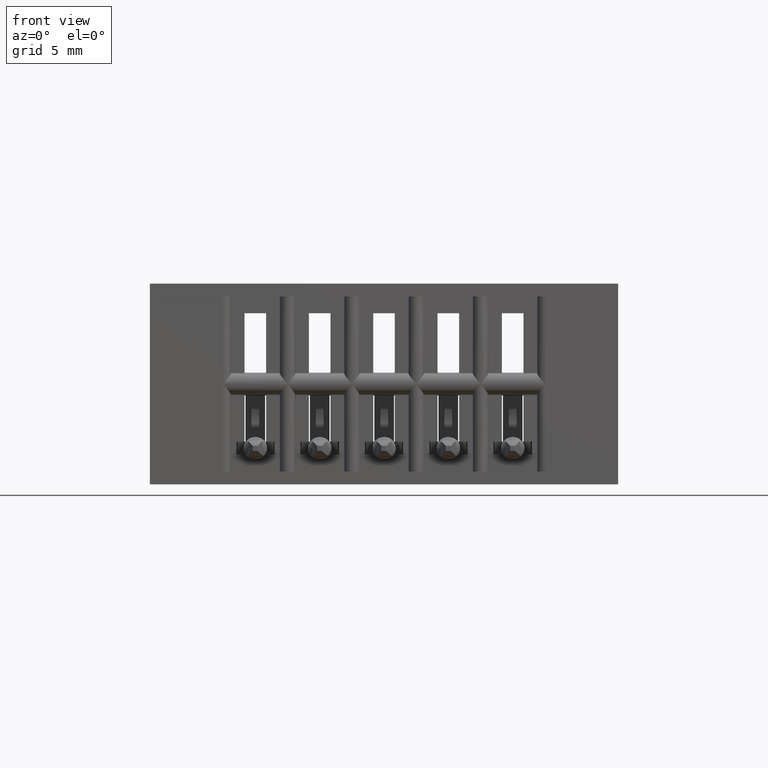
[diagram: clean part render]
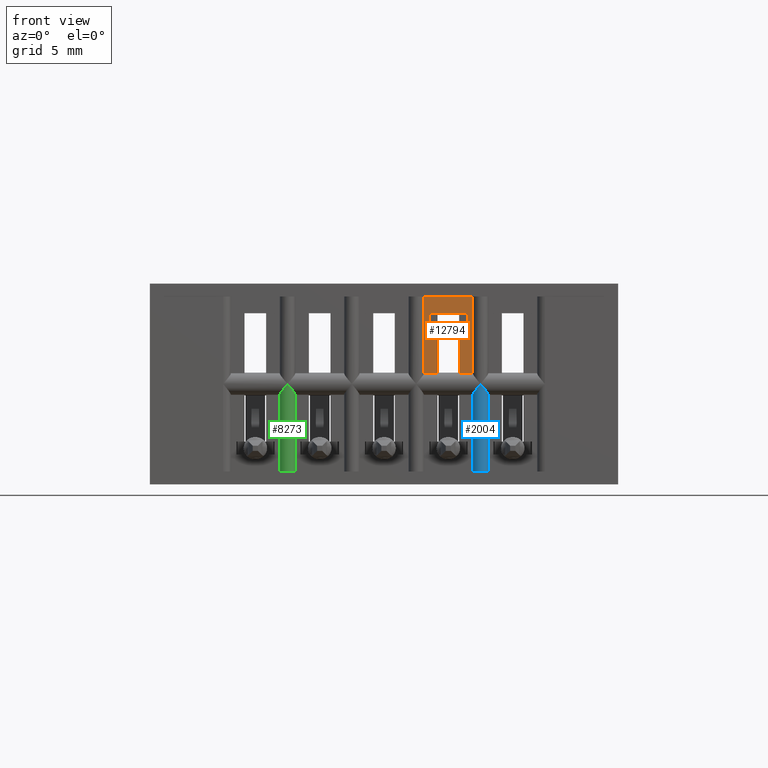
[diagram: same view with three faces highlighted in distinct colors, each labeled with its STEP entity id]
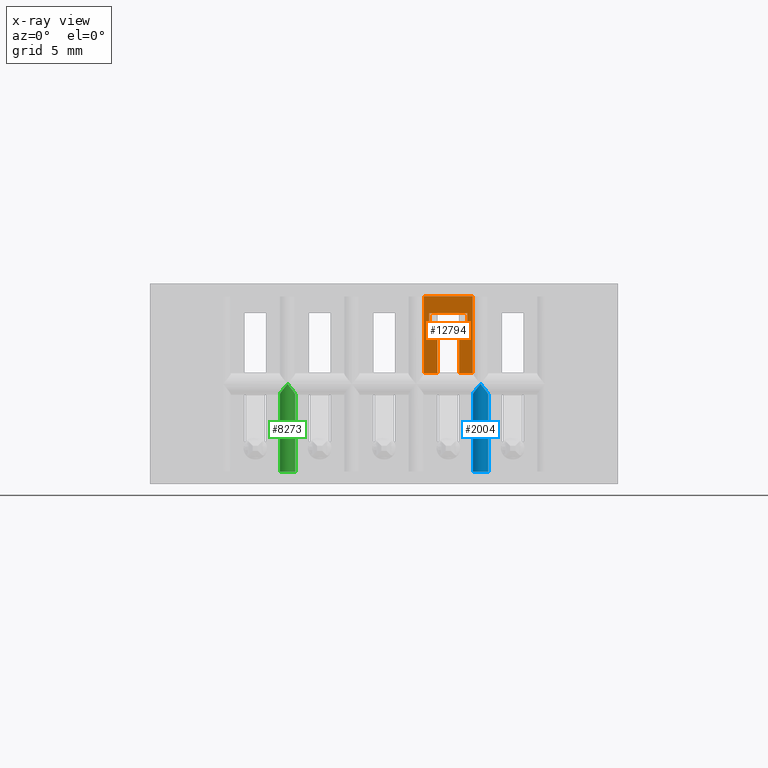
[diagram: x-ray of the same camera — body ghosted, the three highlighted faces saturated]
A machine part, front view with three faces highlighted in distinct colors.
The next image is the same camera in x-ray (body ghosted, the three faces saturated) — at least one of them is partly hidden behind the body in this view.
Their STEP definitions:

[orange] entity #12794 — the highlighted planar face has unit normal (0, 1, 0).
#206 = EDGE_CURVE ( 'NONE', #6165, #8175, #1963, .T. ) ;
#266 = DIRECTION ( 'NONE',  ( 0.0000000000000000000, -4.596859604723521792E-16, 1.000000000000000000 ) ) ;
#330 = LINE ( 'NONE', #3311, #10071 ) ;
#487 = CARTESIAN_POINT ( 'NONE',  ( 0.6274999999999996136, 0.01499999999999997516, -0.1741433463853853669 ) ) ;
#711 = ORIENTED_EDGE ( 'NONE', *, *, #7004, .F. ) ;
#755 = VERTEX_POINT ( 'NONE', #6535 ) ;
#775 = CARTESIAN_POINT ( 'NONE',  ( 0.5589999999994517133, 0.01499999999999997169, -0.1741433463853853669 ) ) ;
#1010 = ORIENTED_EDGE ( 'NONE', *, *, #11362, .T. ) ;
#1065 = CARTESIAN_POINT ( 'NONE',  ( -19685.03937007874265, 0.01499999999999987801, -0.1741433463808433058 ) ) ;
#1105 = EDGE_LOOP ( 'NONE', ( #12734, #9908, #5243, #711, #10422, #10274, #8058, #1733, #1010, #12609, #12163, #4181 ) ) ;
#1256 = DIRECTION ( 'NONE',  ( 9.044631870915464862E-16, 4.596859604723521792E-16, -1.000000000000000000 ) ) ;
#1406 = DIRECTION ( 'NONE',  ( 1.000000000000000000, -6.287160262869394461E-33, -2.170533279014657500E-16 ) ) ;
#1410 = VECTOR ( 'NONE', #9651, 39.37007874015748143 ) ;
#1527 = VECTOR ( 'NONE', #4737, 39.37007874015748143 ) ;
#1733 = ORIENTED_EDGE ( 'NONE', *, *, #11335, .T. ) ;
#1963 = LINE ( 'NONE', #12505, #1527 ) ;
#2042 = DIRECTION ( 'NONE',  ( -1.000000000000000000, -0.0000000000000000000, 2.307304048702924629E-16 ) ) ;
#2043 = CARTESIAN_POINT ( 'NONE',  ( 0.5324999999999997513, 0.01499999999999997169, -0.1741433463853853669 ) ) ;
#2130 = CARTESIAN_POINT ( 'NONE',  ( 0.5589999999999997193, 0.01499999999999997169, -4.404883600063556642E-17 ) ) ;
#2221 = FACE_OUTER_BOUND ( 'NONE', #1105, .T. ) ;
#2237 = CARTESIAN_POINT ( 'NONE',  ( 0.5429999999999995941, 0.01499999999999979475, -5.162495758701515027E-17 ) ) ;
#2269 = EDGE_CURVE ( 'NONE', #10881, #4845, #9682, .T. ) ;
#2429 = EDGE_CURVE ( 'NONE', #7485, #12585, #11156, .T. ) ;
#2447 = CARTESIAN_POINT ( 'NONE',  ( 0.5589999999999997193, 0.01499999999999983291, -0.08249999999999996225 ) ) ;
#2816 = EDGE_CURVE ( 'NONE', #5051, #4316, #10285, .T. ) ;
#3119 = VECTOR ( 'NONE', #8227, 39.37007874015748143 ) ;
#3214 = VECTOR ( 'NONE', #8849, 39.37007874015748143 ) ;
#3311 = CARTESIAN_POINT ( 'NONE',  ( 0.6274999999999996136, 0.01499999999999997169, -0.3900000000000000133 ) ) ;
#3354 = CARTESIAN_POINT ( 'NONE',  ( 0.5324999999999997513, 0.01499999999999997169, -0.02500000000000000486 ) ) ;
#3672 = VECTOR ( 'NONE', #2042, 39.37007874015748143 ) ;
#4181 = ORIENTED_EDGE ( 'NONE', *, *, #7243, .F. ) ;
#4285 = DIRECTION ( 'NONE',  ( -0.0000000000000000000, -0.0000000000000000000, 1.000000000000000000 ) ) ;
#4291 = LINE ( 'NONE', #6163, #3119 ) ;
#4316 = VERTEX_POINT ( 'NONE', #12149 ) ;
#4704 = VECTOR ( 'NONE', #11002, 39.37007874015748143 ) ;
#4737 = DIRECTION ( 'NONE',  ( -0.0000000000000000000, -0.0000000000000000000, 1.000000000000000000 ) ) ;
#4772 = CARTESIAN_POINT ( 'NONE',  ( 19685.03937007874265, 0.01499999999999987801, -0.1741433463899271783 ) ) ;
#4845 = VERTEX_POINT ( 'NONE', #487 ) ;
#5051 = VERTEX_POINT ( 'NONE', #6154 ) ;
#5203 = CARTESIAN_POINT ( 'NONE',  ( 0.6169999999999998819, 0.01499999999999979475, -1.163771384098141646E-16 ) ) ;
#5243 = ORIENTED_EDGE ( 'NONE', *, *, #2429, .T. ) ;
#5358 = AXIS2_PLACEMENT_3D ( 'NONE', #7306, #10993, #266 ) ;
#5398 = VECTOR ( 'NONE', #9212, 39.37007874015748143 ) ;
#5399 = CARTESIAN_POINT ( 'NONE',  ( 0.5589999999999997193, 0.01499999999999983291, -0.08249999999999993450 ) ) ;
#5857 = VERTEX_POINT ( 'NONE', #11472 ) ;
#6088 = EDGE_CURVE ( 'NONE', #5051, #755, #9985, .T. ) ;
#6154 = CARTESIAN_POINT ( 'NONE',  ( 0.5429999999999997051, 0.01499999999999982250, -0.05749999999999997474 ) ) ;
#6163 = CARTESIAN_POINT ( 'NONE',  ( 0.5589999999999997193, 0.01499999999999999424, -0.02500000000000003608 ) ) ;
#6165 = VERTEX_POINT ( 'NONE', #2043 ) ;
#6273 = CARTESIAN_POINT ( 'NONE',  ( 0.5589999999999997193, 0.01499999999999991444, -0.05750000000000015515 ) ) ;
#6291 = LINE ( 'NONE', #5203, #5398 ) ;
#6509 = LINE ( 'NONE', #2447, #12020 ) ;
#6535 = CARTESIAN_POINT ( 'NONE',  ( 0.5429999999999997051, 0.01499999999999982250, -0.08249999999999996225 ) ) ;
#7004 = EDGE_CURVE ( 'NONE', #755, #12585, #6509, .T. ) ;
#7223 = EDGE_CURVE ( 'NONE', #5857, #4316, #6291, .T. ) ;
#7243 = EDGE_CURVE ( 'NONE', #8175, #11069, #4291, .T. ) ;
#7306 = CARTESIAN_POINT ( 'NONE',  ( 0.5589999999999997193, 0.01499999999999979475, -3.715354659355037839E-17 ) ) ;
#7485 = VERTEX_POINT ( 'NONE', #775 ) ;
#7622 = CARTESIAN_POINT ( 'NONE',  ( 0.6009999999999996456, 0.01499999999999997169, -5.373951300518784932E-17 ) ) ;
#7641 = VECTOR ( 'NONE', #1256, 39.37007874015748143 ) ;
#7753 = CARTESIAN_POINT ( 'NONE',  ( 0.5589999999999997193, 0.01499999999999997169, -0.08249999999999997613 ) ) ;
#7868 = VECTOR ( 'NONE', #12094, 39.37007874015748143 ) ;
#7902 = CARTESIAN_POINT ( 'NONE',  ( 0.6274999999999996136, 0.01499999999999997169, -0.02500000000000000486 ) ) ;
#8058 = ORIENTED_EDGE ( 'NONE', *, *, #7223, .F. ) ;
#8122 = CARTESIAN_POINT ( 'NONE',  ( 0.6009999999999996456, 0.01499999999999997169, -0.1741433463853853669 ) ) ;
#8175 = VERTEX_POINT ( 'NONE', #3354 ) ;
#8227 = DIRECTION ( 'NONE',  ( 1.000000000000000000, -0.0000000000000000000, -2.307304048702925122E-16 ) ) ;
#8615 = LINE ( 'NONE', #7622, #1410 ) ;
#8849 = DIRECTION ( 'NONE',  ( 1.000000000000000000, 0.0000000000000000000, -2.307304048702924629E-16 ) ) ;
#9212 = DIRECTION ( 'NONE',  ( 1.365923996832131609E-15, -4.596859604723521792E-16, 1.000000000000000000 ) ) ;
#9651 = DIRECTION ( 'NONE',  ( -2.385081683068867604E-16, 0.0000000000000000000, -1.000000000000000000 ) ) ;
#9682 = LINE ( 'NONE', #4772, #3214 ) ;
#9908 = ORIENTED_EDGE ( 'NONE', *, *, #12158, .F. ) ;
#9985 = LINE ( 'NONE', #2237, #7641 ) ;
#10071 = VECTOR ( 'NONE', #4285, 39.37007874015748143 ) ;
#10274 = ORIENTED_EDGE ( 'NONE', *, *, #2816, .T. ) ;
#10285 = LINE ( 'NONE', #6273, #7868 ) ;
#10308 = LINE ( 'NONE', #5399, #4704 ) ;
#10382 = CARTESIAN_POINT ( 'NONE',  ( 0.6009999999999996456, 0.01499999999999982250, -0.08249999999999996225 ) ) ;
#10422 = ORIENTED_EDGE ( 'NONE', *, *, #6088, .F. ) ;
#10881 = VERTEX_POINT ( 'NONE', #8122 ) ;
#10961 = VECTOR ( 'NONE', #12080, 39.37007874015748143 ) ;
#10993 = DIRECTION ( 'NONE',  ( 1.060635277729750645E-31, 1.000000000000000000, 4.596859604723521792E-16 ) ) ;
#11002 = DIRECTION ( 'NONE',  ( -1.000000000000000000, -6.287160262869416356E-33, 2.444074818391192251E-16 ) ) ;
#11069 = VERTEX_POINT ( 'NONE', #7902 ) ;
#11156 = LINE ( 'NONE', #2130, #10961 ) ;
#11187 = PLANE ( 'NONE',  #5358 ) ;
#11335 = EDGE_CURVE ( 'NONE', #5857, #12008, #10308, .T. ) ;
#11362 = EDGE_CURVE ( 'NONE', #12008, #10881, #8615, .T. ) ;
#11472 = CARTESIAN_POINT ( 'NONE',  ( 0.6169999999999995488, 0.01499999999999982250, -0.08249999999999996225 ) ) ;
#11616 = EDGE_CURVE ( 'NONE', #4845, #11069, #330, .T. ) ;
#12008 = VERTEX_POINT ( 'NONE', #10382 ) ;
#12020 = VECTOR ( 'NONE', #1406, 39.37007874015748143 ) ;
#12080 = DIRECTION ( 'NONE',  ( 2.385081683068867604E-16, 0.0000000000000000000, 1.000000000000000000 ) ) ;
#12094 = DIRECTION ( 'NONE',  ( 1.000000000000000000, -0.0000000000000000000, -2.307304048702925122E-16 ) ) ;
#12149 = CARTESIAN_POINT ( 'NONE',  ( 0.6169999999999997708, 0.01499999999999982250, -0.05749999999999998168 ) ) ;
#12158 = EDGE_CURVE ( 'NONE', #7485, #6165, #12773, .T. ) ;
#12163 = ORIENTED_EDGE ( 'NONE', *, *, #11616, .T. ) ;
#12505 = CARTESIAN_POINT ( 'NONE',  ( 0.5324999999999997513, 0.01499999999999997169, -0.3900000000000000133 ) ) ;
#12585 = VERTEX_POINT ( 'NONE', #7753 ) ;
#12609 = ORIENTED_EDGE ( 'NONE', *, *, #2269, .T. ) ;
#12734 = ORIENTED_EDGE ( 'NONE', *, *, #206, .F. ) ;
#12773 = LINE ( 'NONE', #1065, #3672 ) ;
#12794 = ADVANCED_FACE ( 'NONE', ( #2221 ), #11187, .F. ) ;

[blue] entity #2004 — the highlighted cylindrical surface (edge-blend (fillet) strip) has radius 0.381 mm, axis along (0, 0, 1).
#274 = ORIENTED_EDGE ( 'NONE', *, *, #9875, .T. ) ;
#416 = CARTESIAN_POINT ( 'NONE',  ( 0.6574999999999997513, 0.01499999999999997169, -0.3900000000000000133 ) ) ;
#546 = CARTESIAN_POINT ( 'NONE',  ( 0.6274999999999996136, 0.01499999999999997169, -0.2158566536146137582 ) ) ;
#547 = CARTESIAN_POINT ( 'NONE',  ( 0.6281489313902629545, 0.01013343672870411702, -0.2136884110686218807 ) ) ;
#595 = DIRECTION ( 'NONE',  ( -0.0000000000000000000, -0.0000000000000000000, 1.000000000000000000 ) ) ;
#612 = EDGE_CURVE ( 'NONE', #6408, #4529, #4435, .T. ) ;
#776 = CARTESIAN_POINT ( 'NONE',  ( 0.6574999999999996403, 0.01244425316742273080, -0.2149988828447378930 ) ) ;
#1566 = VECTOR ( 'NONE', #10194, 39.37007874015748143 ) ;
#1599 = CARTESIAN_POINT ( 'NONE',  ( 0.6314099099108575475, 0.004728007783811010237, -0.2088061091034331407 ) ) ;
#1828 = CARTESIAN_POINT ( 'NONE',  ( 0.6458739981909384920, -1.610696509936327028E-17, -0.1990861248552219520 ) ) ;
#2004 = ADVANCED_FACE ( 'NONE', ( #12582 ), #3715, .T. ) ;
#2761 = CARTESIAN_POINT ( 'NONE',  ( 0.6424999999999996270, 0.01499999999999997169, -0.3900000000000000133 ) ) ;
#3715 = CYLINDRICAL_SURFACE ( 'NONE', #9413, 0.01499999999999997689 ) ;
#3765 = CARTESIAN_POINT ( 'NONE',  ( 0.6274999999999996136, 0.01499999999999997169, -0.3649999999999999911 ) ) ;
#3854 = CARTESIAN_POINT ( 'NONE',  ( 0.6574999999999997513, 0.01499999999999997169, -0.3649999999999999911 ) ) ;
#4018 = CARTESIAN_POINT ( 'NONE',  ( 0.6549025441399072278, 0.006292904779862440456, -0.2105999740989205060 ) ) ;
#4121 = B_SPLINE_CURVE_WITH_KNOTS ( 'NONE', 3,
 ( #9430, #12198, #547, #10447, #1599, #9235, #5545, #9485 ),
 .UNSPECIFIED., .F., .F.,
 ( 4, 2, 2, 4 ),
 ( 5.421010862427522170E-20, 0.0002018944217550984444, 0.0004037888435101967804, 0.0008075776870204009333 ),
 .UNSPECIFIED. ) ;
#4435 = CIRCLE ( 'NONE', #8980, 0.01499999999999997689 ) ;
#4510 = ORIENTED_EDGE ( 'NONE', *, *, #5913, .F. ) ;
#4529 = VERTEX_POINT ( 'NONE', #3854 ) ;
#4567 = VERTEX_POINT ( 'NONE', #9561 ) ;
#4801 = CARTESIAN_POINT ( 'NONE',  ( 0.6424999999999996270, -1.387266755345461223E-17, -0.1949999999999995348 ) ) ;
#5126 = DIRECTION ( 'NONE',  ( 0.0000000000000000000, 0.0000000000000000000, 1.000000000000000000 ) ) ;
#5225 = EDGE_LOOP ( 'NONE', ( #11473, #4510, #8862, #9631, #274 ) ) ;
#5545 = CARTESIAN_POINT ( 'NONE',  ( 0.6391260018090532125, -1.597357408404763810E-17, -0.1990861248552154850 ) ) ;
#5913 = EDGE_CURVE ( 'NONE', #10949, #4567, #4121, .T. ) ;
#5948 = CARTESIAN_POINT ( 'NONE',  ( 0.6274999999999996136, 0.01499999999999997169, -0.3900000000000000133 ) ) ;
#6249 = LINE ( 'NONE', #416, #1566 ) ;
#6335 = VERTEX_POINT ( 'NONE', #9654 ) ;
#6408 = VERTEX_POINT ( 'NONE', #3765 ) ;
#6701 = DIRECTION ( 'NONE',  ( -0.0000000000000000000, -0.0000000000000000000, 1.000000000000000000 ) ) ;
#7572 = B_SPLINE_CURVE_WITH_KNOTS ( 'NONE', 3,
 ( #8806, #776, #11907, #4018, #8873, #9293, #1828, #4801 ),
 .UNSPECIFIED., .F., .F.,
 ( 4, 2, 2, 4 ),
 ( 4.336808689942017736E-19, 0.0002018944217550996641, 0.0004037888435101988946, 0.0008075776870204011502 ),
 .UNSPECIFIED. ) ;
#8707 = EDGE_CURVE ( 'NONE', #6335, #4567, #7572, .T. ) ;
#8806 = CARTESIAN_POINT ( 'NONE',  ( 0.6574999999999997513, 0.01499999999999997169, -0.2158566536146137305 ) ) ;
#8862 = ORIENTED_EDGE ( 'NONE', *, *, #10408, .F. ) ;
#8873 = CARTESIAN_POINT ( 'NONE',  ( 0.6535900900891420395, 0.004728007783811011104, -0.2088061091034331407 ) ) ;
#8938 = DIRECTION ( 'NONE',  ( 1.000000000000000000, 0.0000000000000000000, 0.0000000000000000000 ) ) ;
#8980 = AXIS2_PLACEMENT_3D ( 'NONE', #10028, #5126, #8938 ) ;
#9235 = CARTESIAN_POINT ( 'NONE',  ( 0.6357066941780518121, 0.001112354947348557751, -0.2032114395158498565 ) ) ;
#9293 = CARTESIAN_POINT ( 'NONE',  ( 0.6492933058219477749, 0.001112354947348558835, -0.2032114395158498010 ) ) ;
#9413 = AXIS2_PLACEMENT_3D ( 'NONE', #2761, #6701, #10637 ) ;
#9430 = CARTESIAN_POINT ( 'NONE',  ( 0.6274999999999996136, 0.01499999999999997169, -0.2158566536146137582 ) ) ;
#9485 = CARTESIAN_POINT ( 'NONE',  ( 0.6424999999999996270, -1.387266755345461223E-17, -0.1949999999999995348 ) ) ;
#9561 = CARTESIAN_POINT ( 'NONE',  ( 0.6424999999999996270, -1.387266755345461223E-17, -0.1949999999999995348 ) ) ;
#9631 = ORIENTED_EDGE ( 'NONE', *, *, #612, .T. ) ;
#9654 = CARTESIAN_POINT ( 'NONE',  ( 0.6574999999999997513, 0.01499999999999997169, -0.2158566536146137305 ) ) ;
#9875 = EDGE_CURVE ( 'NONE', #4529, #6335, #6249, .T. ) ;
#9890 = VECTOR ( 'NONE', #595, 39.37007874015748143 ) ;
#10028 = CARTESIAN_POINT ( 'NONE',  ( 0.6424999999999996270, 0.01499999999999997169, -0.3649999999999999911 ) ) ;
#10194 = DIRECTION ( 'NONE',  ( -0.0000000000000000000, -0.0000000000000000000, 1.000000000000000000 ) ) ;
#10408 = EDGE_CURVE ( 'NONE', #6408, #10949, #10854, .T. ) ;
#10447 = CARTESIAN_POINT ( 'NONE',  ( 0.6300974558600919151, 0.006292904779862438722, -0.2105999740989204227 ) ) ;
#10637 = DIRECTION ( 'NONE',  ( 1.000000000000000000, 0.0000000000000000000, 0.0000000000000000000 ) ) ;
#10854 = LINE ( 'NONE', #5948, #9890 ) ;
#10949 = VERTEX_POINT ( 'NONE', #546 ) ;
#11473 = ORIENTED_EDGE ( 'NONE', *, *, #8707, .T. ) ;
#11907 = CARTESIAN_POINT ( 'NONE',  ( 0.6568510686097364104, 0.01013343672870411008, -0.2136884110686218252 ) ) ;
#12198 = CARTESIAN_POINT ( 'NONE',  ( 0.6274999999999996136, 0.01244425316742273600, -0.2149988828447379763 ) ) ;
#12582 = FACE_OUTER_BOUND ( 'NONE', #5225, .T. ) ;

[green] entity #8273 — the highlighted cylindrical surface (edge-blend (fillet) strip) has radius 0.381 mm, axis along (0, 0, 1).
#117 = CARTESIAN_POINT ( 'NONE',  ( 0.2674999999999996825, -1.387266947423259695E-17, -0.1949999999999995626 ) ) ;
#171 = CARTESIAN_POINT ( 'NONE',  ( 0.2824999999999996958, 0.01499999999999997169, -0.3900000000000000133 ) ) ;
#193 = B_SPLINE_CURVE_WITH_KNOTS ( 'NONE', 3,
 ( #12544, #4538, #4412, #8469, #3676, #3570, #7489, #2719 ),
 .UNSPECIFIED., .F., .F.,
 ( 4, 2, 2, 4 ),
 ( 1.084202172485504434E-19, 0.0002018944217551003146, 0.0004037888435102004667, 0.0008075776870204025596 ),
 .UNSPECIFIED. ) ;
#322 = VERTEX_POINT ( 'NONE', #2091 ) ;
#458 = CARTESIAN_POINT ( 'NONE',  ( 0.2607066941780518121, 0.001112354947348547776, -0.2032114395158498288 ) ) ;
#516 = EDGE_CURVE ( 'NONE', #9803, #4238, #2950, .T. ) ;
#779 = CARTESIAN_POINT ( 'NONE',  ( 0.2824999999999996958, 0.01499999999999997169, -0.3649999999999999911 ) ) ;
#854 = VECTOR ( 'NONE', #8399, 39.37007874015748143 ) ;
#1374 = CARTESIAN_POINT ( 'NONE',  ( 0.2524999999999997247, 0.01244425316742273253, -0.2149988828447380318 ) ) ;
#1438 = CARTESIAN_POINT ( 'NONE',  ( 0.2524999999999996692, 0.01499999999999997169, -0.2158566536146137582 ) ) ;
#1918 = DIRECTION ( 'NONE',  ( -0.0000000000000000000, -0.0000000000000000000, 1.000000000000000000 ) ) ;
#2091 = CARTESIAN_POINT ( 'NONE',  ( 0.2824999999999996958, 0.01499999999999997169, -0.2158566536146137582 ) ) ;
#2570 = CARTESIAN_POINT ( 'NONE',  ( 0.2524999999999996692, 0.01499999999999997169, -0.2158566536146137582 ) ) ;
#2705 = CARTESIAN_POINT ( 'NONE',  ( 0.2641260018090585970, -1.230532116286759162E-17, -0.1990861248552201201 ) ) ;
#2719 = CARTESIAN_POINT ( 'NONE',  ( 0.2674999999999996825, -1.387266947423259695E-17, -0.1949999999999995626 ) ) ;
#2896 = ORIENTED_EDGE ( 'NONE', *, *, #5193, .T. ) ;
#2950 = B_SPLINE_CURVE_WITH_KNOTS ( 'NONE', 3,
 ( #1438, #1374, #3443, #9331, #9205, #458, #2705, #10586 ),
 .UNSPECIFIED., .F., .F.,
 ( 4, 2, 2, 4 ),
 ( 3.794707603699265519E-19, 0.0002018944217551013989, 0.0004037888435102024182, 0.0008075776870204026681 ),
 .UNSPECIFIED. ) ;
#3097 = ORIENTED_EDGE ( 'NONE', *, *, #516, .F. ) ;
#3253 = AXIS2_PLACEMENT_3D ( 'NONE', #11875, #5296, #10198 ) ;
#3443 = CARTESIAN_POINT ( 'NONE',  ( 0.2531489313902628435, 0.01013343672870412916, -0.2136884110686219085 ) ) ;
#3488 = LINE ( 'NONE', #4650, #854 ) ;
#3570 = CARTESIAN_POINT ( 'NONE',  ( 0.2742933058219477194, 0.001112354947348547559, -0.2032114395158498843 ) ) ;
#3676 = CARTESIAN_POINT ( 'NONE',  ( 0.2785900900891419285, 0.004728007783811002430, -0.2088061091034331684 ) ) ;
#4238 = VERTEX_POINT ( 'NONE', #117 ) ;
#4412 = CARTESIAN_POINT ( 'NONE',  ( 0.2818510686097365214, 0.01013343672870413090, -0.2136884110686217975 ) ) ;
#4538 = CARTESIAN_POINT ( 'NONE',  ( 0.2824999999999996403, 0.01244425316742272906, -0.2149988828447379485 ) ) ;
#4650 = CARTESIAN_POINT ( 'NONE',  ( 0.2524999999999996692, 0.01499999999999997169, -0.3900000000000000133 ) ) ;
#4832 = CYLINDRICAL_SURFACE ( 'NONE', #7463, 0.01500000000000001159 ) ;
#5193 = EDGE_CURVE ( 'NONE', #322, #4238, #193, .T. ) ;
#5296 = DIRECTION ( 'NONE',  ( 0.0000000000000000000, 0.0000000000000000000, 1.000000000000000000 ) ) ;
#5791 = EDGE_CURVE ( 'NONE', #11366, #322, #6187, .T. ) ;
#6187 = LINE ( 'NONE', #171, #8899 ) ;
#6238 = VERTEX_POINT ( 'NONE', #9352 ) ;
#6599 = EDGE_CURVE ( 'NONE', #6238, #9803, #3488, .T. ) ;
#6638 = CARTESIAN_POINT ( 'NONE',  ( 0.2674999999999996825, 0.01499999999999997169, -0.3900000000000000133 ) ) ;
#7130 = ORIENTED_EDGE ( 'NONE', *, *, #6599, .F. ) ;
#7386 = EDGE_LOOP ( 'NONE', ( #2896, #3097, #7130, #9498, #9299 ) ) ;
#7463 = AXIS2_PLACEMENT_3D ( 'NONE', #6638, #1918, #10698 ) ;
#7489 = CARTESIAN_POINT ( 'NONE',  ( 0.2708739981909360495, -1.312419378466637020E-17, -0.1990861248552241447 ) ) ;
#8273 = ADVANCED_FACE ( 'NONE', ( #8772 ), #4832, .T. ) ;
#8399 = DIRECTION ( 'NONE',  ( -0.0000000000000000000, -0.0000000000000000000, 1.000000000000000000 ) ) ;
#8469 = CARTESIAN_POINT ( 'NONE',  ( 0.2799025441399073388, 0.006292904779862445661, -0.2105999740989204783 ) ) ;
#8772 = FACE_OUTER_BOUND ( 'NONE', #7386, .T. ) ;
#8825 = CIRCLE ( 'NONE', #3253, 0.01500000000000001159 ) ;
#8899 = VECTOR ( 'NONE', #8977, 39.37007874015748143 ) ;
#8977 = DIRECTION ( 'NONE',  ( -0.0000000000000000000, -0.0000000000000000000, 1.000000000000000000 ) ) ;
#9205 = CARTESIAN_POINT ( 'NONE',  ( 0.2564099099108574920, 0.004728007783811000696, -0.2088061091034331962 ) ) ;
#9299 = ORIENTED_EDGE ( 'NONE', *, *, #5791, .T. ) ;
#9331 = CARTESIAN_POINT ( 'NONE',  ( 0.2550974558600920816, 0.006292904779862444793, -0.2105999740989205338 ) ) ;
#9352 = CARTESIAN_POINT ( 'NONE',  ( 0.2524999999999996692, 0.01499999999999997169, -0.3649999999999999911 ) ) ;
#9498 = ORIENTED_EDGE ( 'NONE', *, *, #10853, .T. ) ;
#9803 = VERTEX_POINT ( 'NONE', #2570 ) ;
#10198 = DIRECTION ( 'NONE',  ( 1.000000000000000000, 0.0000000000000000000, 0.0000000000000000000 ) ) ;
#10586 = CARTESIAN_POINT ( 'NONE',  ( 0.2674999999999996825, -1.387266947423259695E-17, -0.1949999999999995626 ) ) ;
#10698 = DIRECTION ( 'NONE',  ( 1.000000000000000000, 0.0000000000000000000, 0.0000000000000000000 ) ) ;
#10853 = EDGE_CURVE ( 'NONE', #6238, #11366, #8825, .T. ) ;
#11366 = VERTEX_POINT ( 'NONE', #779 ) ;
#11875 = CARTESIAN_POINT ( 'NONE',  ( 0.2674999999999996825, 0.01499999999999997169, -0.3649999999999999911 ) ) ;
#12544 = CARTESIAN_POINT ( 'NONE',  ( 0.2824999999999996958, 0.01499999999999997169, -0.2158566536146137582 ) ) ;